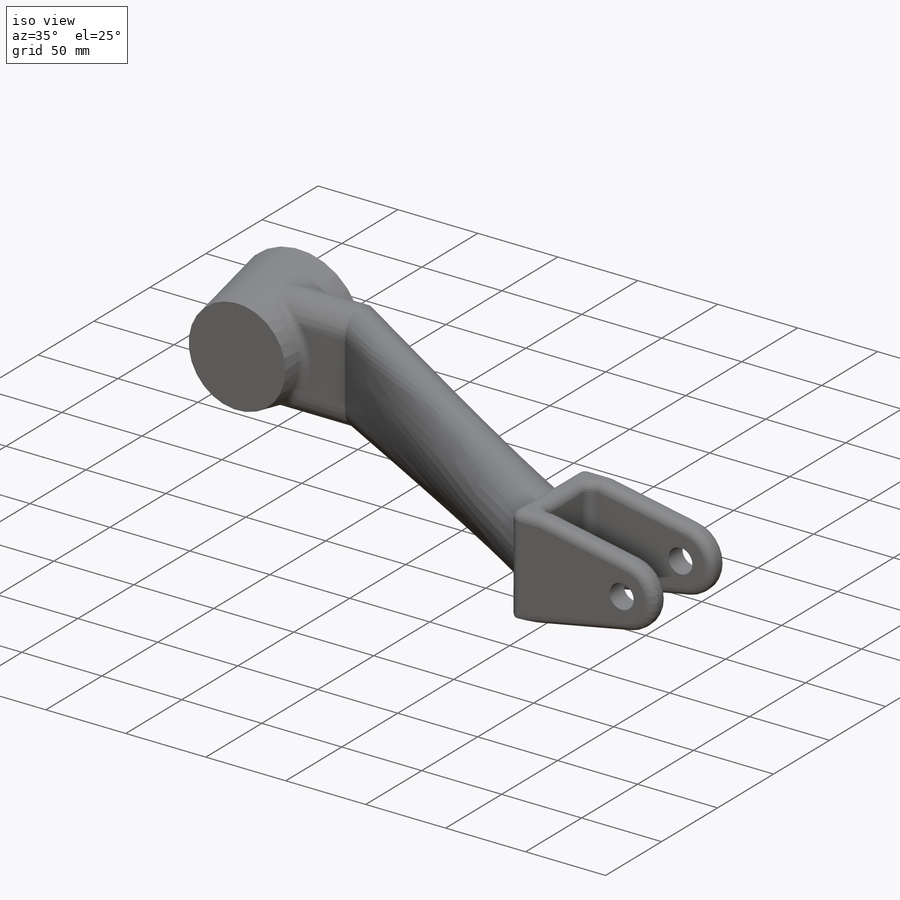
[diagram: iso view]
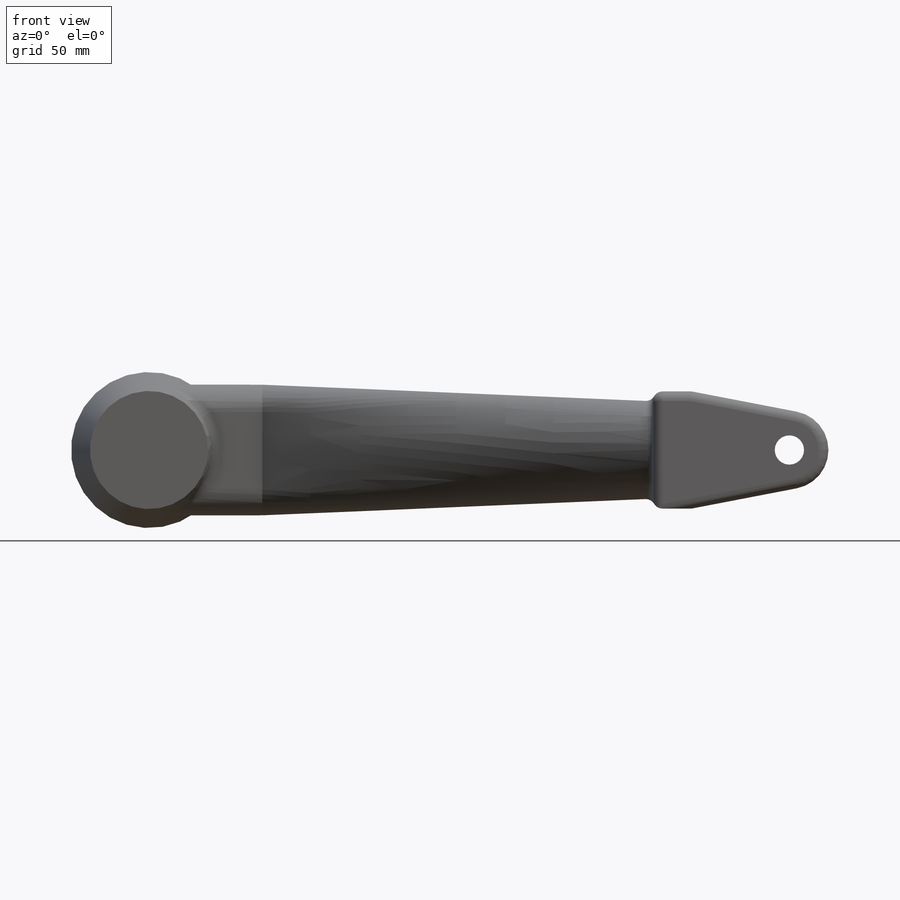
[diagram: front view]
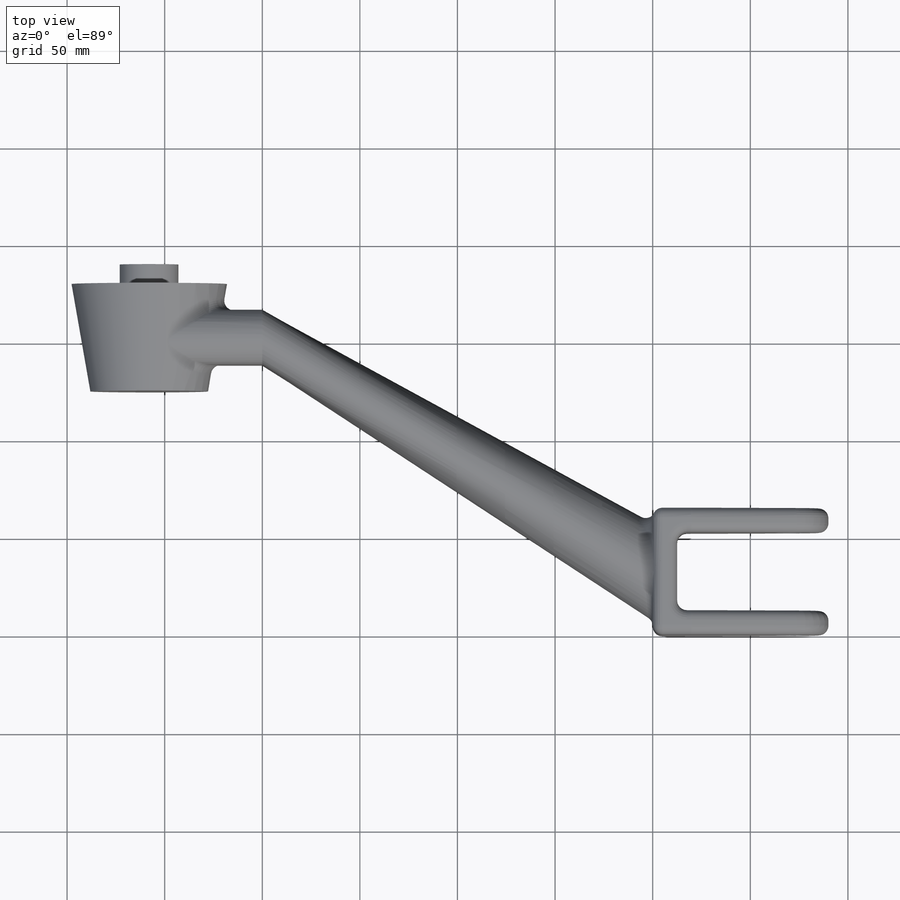
[diagram: top view]
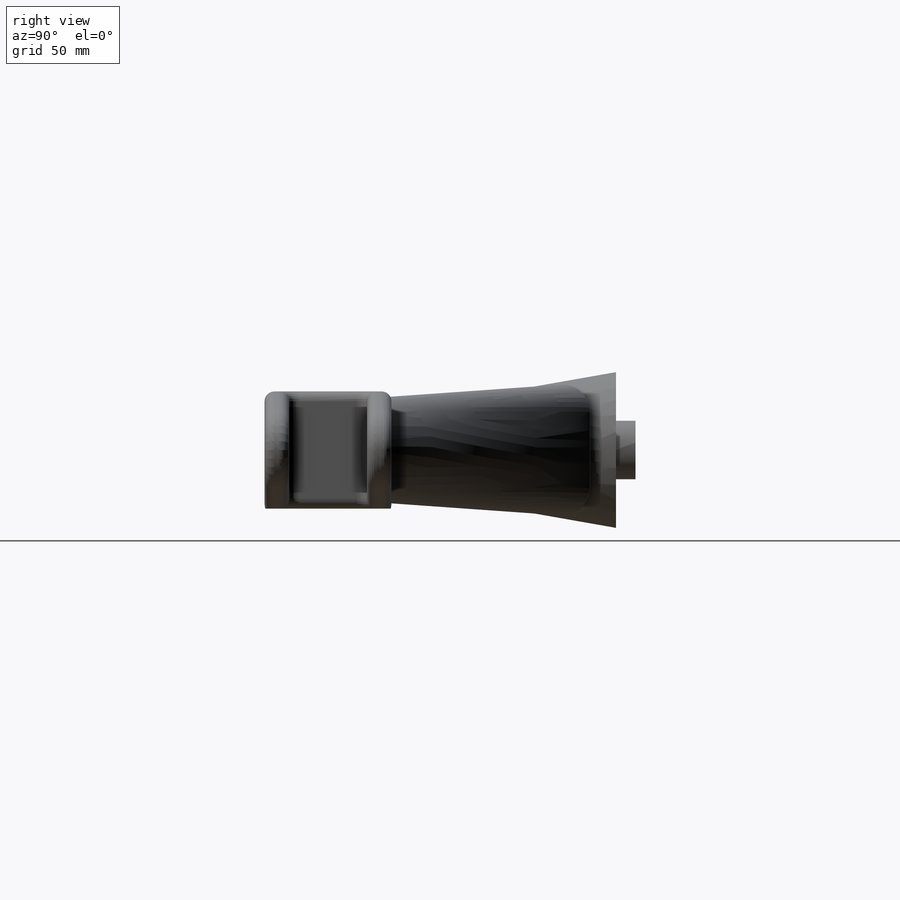
[diagram: right view]
SOLIDWORKS PART (.sldprt)
format: sldprt  version: not decoded by parser v0  size: 429,056 bytes
history: native  units: mm
features: sketch x6, extrude x4, fillet x2, material x1, cut_extrude x1 (+13 scaffold rows collapsed)
feature tree (27):
  scaffold x13  (default folders/planes/origin — collapsed)
  material  "Material <not specified>"
  sketch  "Sketch3"  dims[c1.D3=20.0mm c1.D4=20.0mm c1.D5=15.0mm c1.D1=60.0mm c1.D2=70.0mm c2.D4=20.0mm c2.D5=~10.278215mm c3.D5=~169.090089deg c4.D5=~54.305859mm]
  extrude  "Boss-Extrude1"  Depth=65mm
  sketch  "Sketch4"  dims[c1.D1=40.0mm c1.D2=12.5mm c2.D1=12.5mm]
  cut_extrude  "Cut-Extrude1"  [1 undecoded]
  sketch  "Sketch5"  dims[c1.D1=76.0mm c1.D2=76.0mm c2.D1=60.5mm c2.D2=328.0mm]
  extrude  "Boss-Extrude2"  Depth=55mm
  sketch  "Sketch6"  dims[D1=28.0mm D2=39.0mm]
  extrude  "Boss-Extrude3"  Depth=200mm
  sketch  "Sketch7"  dims[D1=50.0mm]
  fillet  "Fillet1"  Radius=5mm
  fillet  "Fillet2"  Radius=5mm
  sketch  "Sketch8"  dims[D1=30.0mm]
  extrude  "Boss-Extrude4"  Depth=10mm
decode coverage: 12 of 13 modeling features carry decoded parameters
note: ~ marks probable driven/reference dimensions
note: 1 parameter value undecoded
note: suppression state not decoded; provenance and decode notes live in map.json
